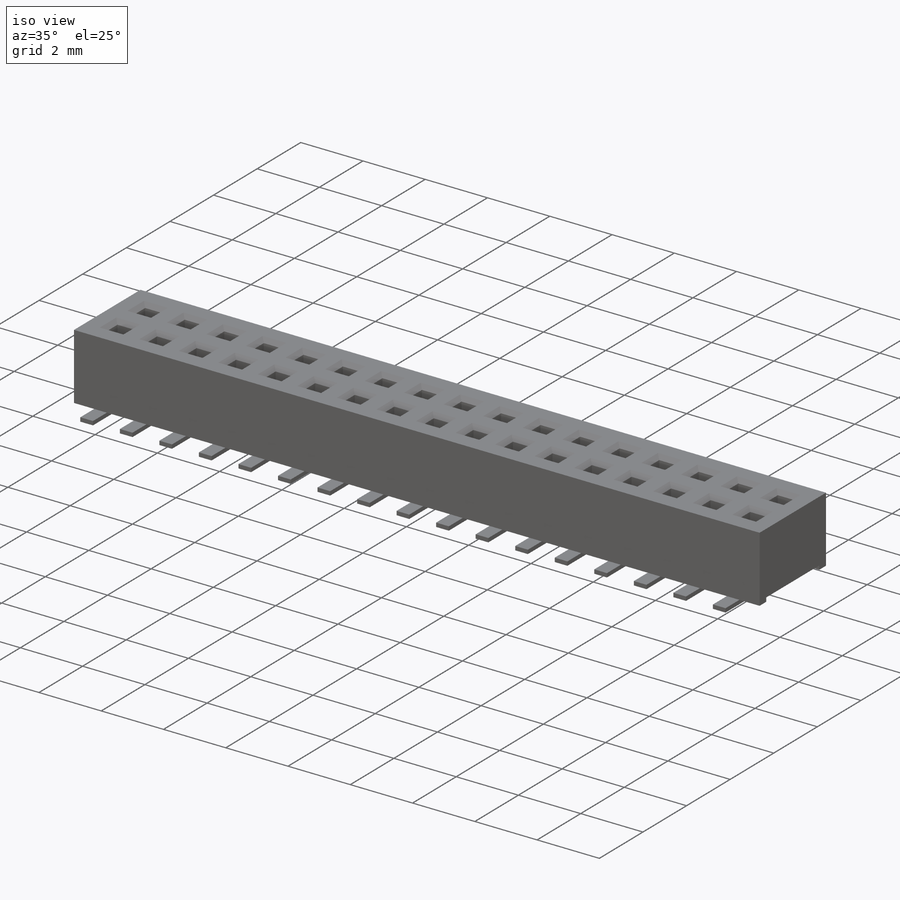
[diagram: iso view]
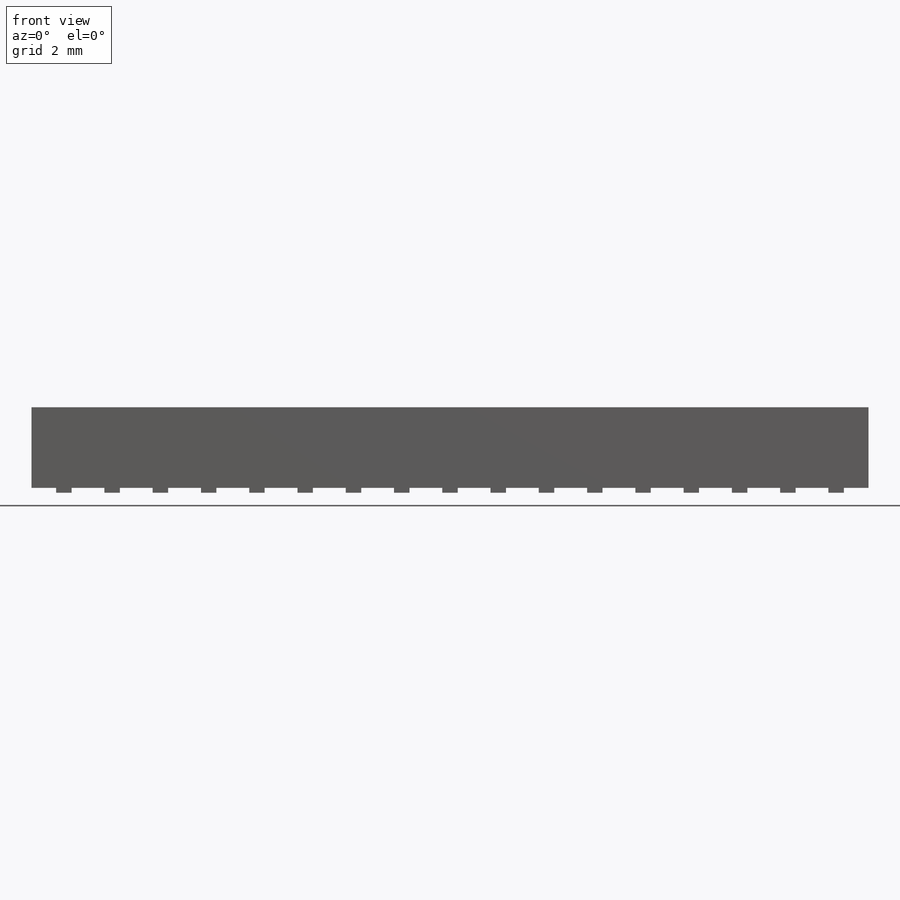
[diagram: front view]
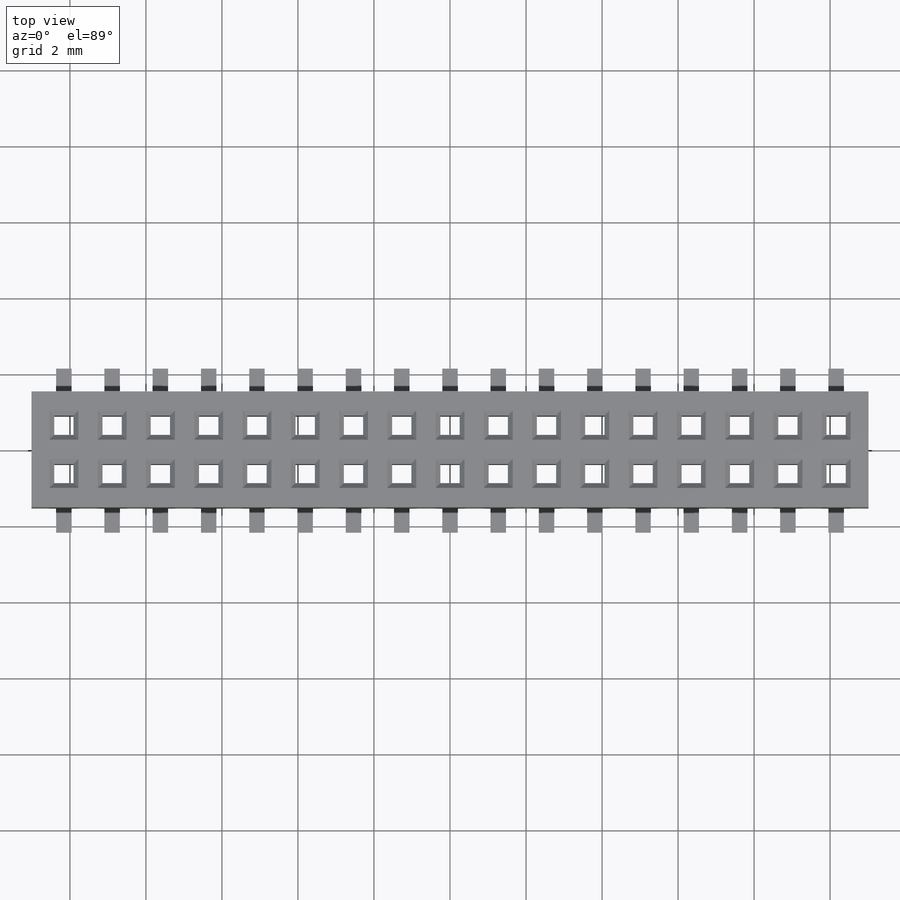
[diagram: top view]
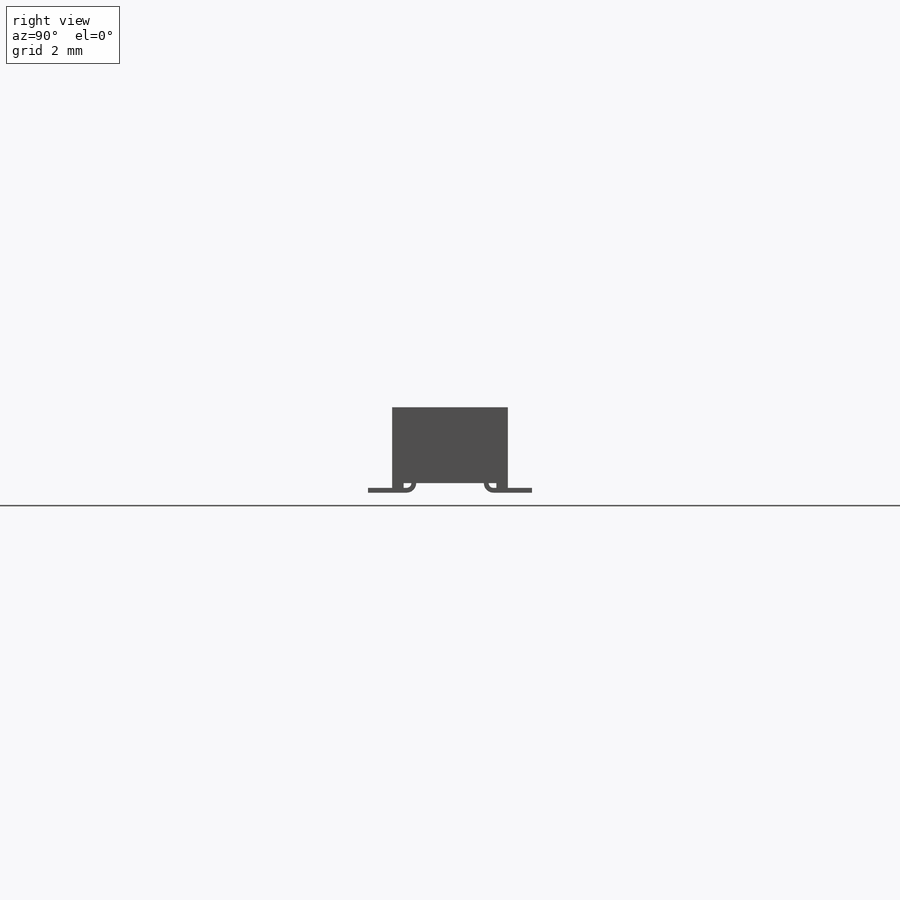
[diagram: right view]
SOLIDWORKS PART (.sldprt)
format: sldprt  version: not decoded by parser v0  size: 823,808 bytes
history: native  units: mm
features: sketch x8, extrude x3, cut_extrude x2, material x1, plane x1, chamfer x1, pattern_linear x1 (+13 scaffold rows collapsed)
feature tree (30):
  scaffold x13  (default folders/planes/origin — collapsed)
  material  "Material <not specified>"
  sketch  "Sketch1"  dims[D1=3.048mm D2=22.0218mm]
  extrude  "Main Body"  Depth=2.1209mm
  plane  "Plane2"
  cut_extrude  "Cut-Extrude2"  [1 undecoded]
  sketch  "Sketch6"  dims[c1.D2=2.54mm c1.D1=0.254mm c1.D3=1.8796mm c2.D1=2.54mm c2.D2=0.254mm c3.D1=~1.720175mm c3.D2=2.54mm c4.D1=0.127mm c4.D2=0.254mm c4.D3=0.3048mm c5.D2=0.3048mm c5.D4=0.254mm c5.D1=0.254mm c6.D2=0.254mm c6.D1=0.8509mm]
  sketch  "Sketch2"  dims[c1.D1=1.27mm c1.D2=0.635mm c1.D3=0.635mm c2.D1=1.2065mm c2.D4=~1.00076mm c2.D5=5.08mm c3.D1=~1.00076mm c3.D3=0.635mm c4.D1=~0.68326mm c4.D3=0.889mm c4.D4=0.508mm c4.D5=0.762mm c5.D4=1.27mm c5.D2=1.27mm c5.D1=0.635mm c6.D2=0.508mm c6.D3=0.635mm c6.D4=0.8509mm c6.D1=0.762mm c7.D3=0.508mm c7.D5=0.635mm c8.D3=0.508mm c8.D5=0.508mm c9.D3=0.762mm c9.D1=1.27mm c10.D3=0.508mm]
  cut_extrude  "Cut-Extrude1"  Depth=2.794mm
  chamfer  "Chamfer1"  Distance=0.127mm
  pattern_linear  "LPattern1"  Spacing1=0mm Spacing2=1.27mm  [1 undecoded]
  sketch  "Sketch7"  dims[c1.D2=0.254mm c1.D1=2.159mm c2.D2=4.318mm c2.D4=0.889mm c2.D1=2.2479mm c3.D4=4.318mm c3.D5=0.762mm c3.D3=0.127mm]
  extrude  "Lead Pin-D"  Depth=0.4064mm
  extrude  "Lead Pattern-D"  Depth=1.27mm
  sketch  "Sketch30"  dims[c1.D1=0.254mm c1.D2=0.889mm c1.D3=0.8636mm c1.D4=1.27mm c1.D5=0.8636mm c1.D6=0.254mm c2.D2=0.762mm]
  sketch  "Sketch10"  dims[c1.D2=0.254mm c1.D3=0.254mm c1.D1=0.381mm c2.D2=0.381mm c2.D3=~0.538815mm c3.D3=45.0deg c4.D3=~0.05842mm c4.D4=0.127mm c5.D3=~0.06858mm c5.D5=~0.05842mm c5.D6=1.1176mm c5.D7=0.127mm c5.D8=1.1176mm c5.D9=~0.06858mm c5.D10=~0.47498mm c5.D1=0.0mm c5.D2=0.381mm c6.D3=0.381mm]
  sketch  "Sketch31"  dims[D1=0.127mm D2=0.254mm D3=0.381mm D4=0.635mm D5=1.4859mm]
  sketch  "Sketch32"  dims[D1=0.635mm D2=0.1778mm]
decode coverage: 14 of 15 modeling features carry decoded parameters
note: ~ marks probable driven/reference dimensions
note: 2 parameter values undecoded
note: suppression state not decoded; provenance and decode notes live in map.json
